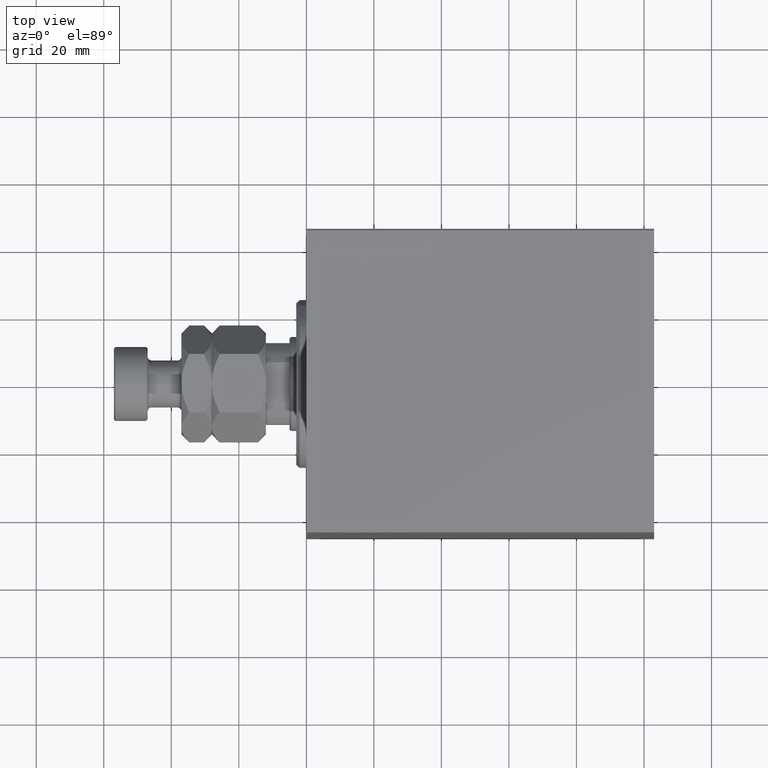
[diagram: clean part render]
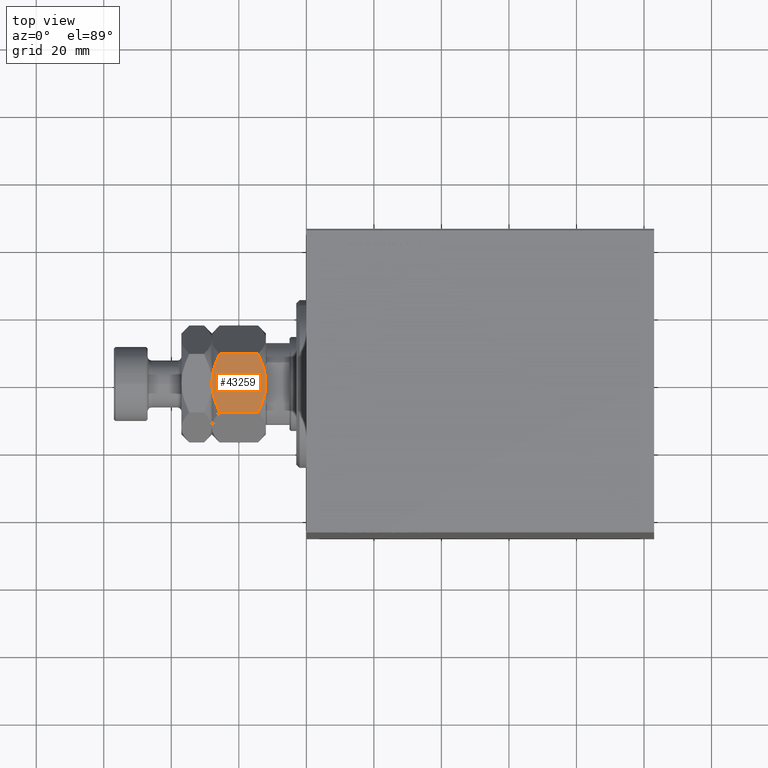
[diagram: same view with one face highlighted and labeled with its STEP entity id]
A machine part, top view. The second image highlights one B-rep face of the part: STEP entity #43259.
In plain terms, the highlighted planar face has unit normal (0, 0, -1).
Its self-contained STEP definition (entity closure, byte-faithful):
#177 = CARTESIAN_POINT ( 'NONE',  ( 15.00000000000000178, 0.3816858437404682114, 16.00000000000001066 ) ) ;
#194 = CARTESIAN_POINT ( 'NONE',  ( 14.99999999999999822, -3.735400403320778384, 0.4426250994506710779 ) ) ;
#358 = LINE ( 'NONE', #21030, #15902 ) ;
#1813 = ORIENTED_EDGE ( 'NONE', *, *, #32866, .F. ) ;
#2253 = AXIS2_PLACEMENT_3D ( 'NONE', #28158, #42209, #38765 ) ;
#2406 = EDGE_CURVE ( 'NONE', #21092, #45363, #358, .T. ) ;
#2760 = ORIENTED_EDGE ( 'NONE', *, *, #14692, .F. ) ;
#3189 = CARTESIAN_POINT ( 'NONE',  ( 15.00000000000000000, -0.7629267201675461463, 0.01468466084192619932 ) ) ;
#3851 = CARTESIAN_POINT ( 'NONE',  ( 15.00000000000000000, 5.178726290334375371, 15.14627300035555990 ) ) ;
#5572 = CARTESIAN_POINT ( 'NONE',  ( 15.00000000000000000, -8.660254037844389075, 13.67949192431123961 ) ) ;
#5811 = CARTESIAN_POINT ( 'NONE',  ( 15.00000000000000178, -7.987590979791838741, 14.01582345333751967 ) ) ;
#6657 = CARTESIAN_POINT ( 'NONE',  ( 15.00000000000000000, 0.000000000000000000, 0.000000000000000000 ) ) ;
#7492 = B_SPLINE_CURVE_WITH_KNOTS ( 'NONE', 3,
 ( #6657, #35594, #3189, #31458, #31230, #21322, #194, #45275, #13769, #42057, #24340, #27776 ),
 .UNSPECIFIED., .F., .F.,
 ( 4, 2, 2, 2, 2, 4 ),
 ( 0.03291042869972461704, 0.03403908204310902852, 0.03516773538649344694, 0.03742504207326226989, 0.03968234876003109979, 0.04193965544679992274 ),
 .UNSPECIFIED. ) ;
#8382 = DIRECTION ( 'NONE',  ( -0.000000000000000000, -0.000000000000000000, -1.000000000000000000 ) ) ;
#8988 = CARTESIAN_POINT ( 'NONE',  ( 15.00000000000000178, 1.527574731641579753, -2.310705880109730931E-15 ) ) ;
#9202 = CARTESIAN_POINT ( 'NONE',  ( 15.00000000000000000, 7.987590979791842294, 1.984176546662486773 ) ) ;
#9512 = CARTESIAN_POINT ( 'NONE',  ( 15.00000000000000000, -8.660254037844389075, 13.67949192431123961 ) ) ;
#9856 = CARTESIAN_POINT ( 'NONE',  ( 15.00000000000000533, 7.987879721624093321, 14.01567908242138927 ) ) ;
#10698 = FACE_OUTER_BOUND ( 'NONE', #22777, .T. ) ;
#10707 = DIRECTION ( 'NONE',  ( -0.000000000000000000, -0.000000000000000000, -1.000000000000000000 ) ) ;
#11979 = CARTESIAN_POINT ( 'NONE',  ( 15.00000000000000000, 0.000000000000000000, 0.000000000000000000 ) ) ;
#13769 = CARTESIAN_POINT ( 'NONE',  ( 15.00000000000000000, -5.890999289811427175, 1.102415080315421125 ) ) ;
#14202 = CARTESIAN_POINT ( 'NONE',  ( 15.00000000000000000, 1.890862710942010638, 15.88574619416683831 ) ) ;
#14484 = B_SPLINE_CURVE_WITH_KNOTS ( 'NONE', 3,
 ( #24321, #177, #27988, #24094, #14202, #38136, #38581, #3851, #38363, #42253, #9856, #24766 ),
 .UNSPECIFIED., .F., .F.,
 ( 4, 2, 2, 2, 2, 4 ),
 ( 0.03291042869972460316, 0.03403908204310901464, 0.03516773538649342612, 0.03742504207326225601, 0.03968234876003107897, 0.04193965544679990887 ),
 .UNSPECIFIED. ) ;
#14692 = EDGE_CURVE ( 'NONE', #36885, #45363, #7492, .T. ) ;
#15902 = VECTOR ( 'NONE', #10707, 1000.000000000000000 ) ;
#16373 = VERTEX_POINT ( 'NONE', #39073 ) ;
#16585 = ORIENTED_EDGE ( 'NONE', *, *, #36089, .F. ) ;
#19313 = CARTESIAN_POINT ( 'NONE',  ( 14.99999999999999822, 5.891877557735396564, 1.102734500939527296 ) ) ;
#19805 = CARTESIAN_POINT ( 'NONE',  ( 15.00000000000000533, -3.008020699068709725, 15.76423971609371222 ) ) ;
#21030 = CARTESIAN_POINT ( 'NONE',  ( 15.00000000000000000, -8.660254037844389075, 16.00000000000000000 ) ) ;
#21092 = VERTEX_POINT ( 'NONE', #9512 ) ;
#21322 = CARTESIAN_POINT ( 'NONE',  ( 15.00000000000000178, -3.004330627448764002, 0.2802888644511988825 ) ) ;
#21580 = VERTEX_POINT ( 'NONE', #24084 ) ;
#22648 = ORIENTED_EDGE ( 'NONE', *, *, #34865, .F. ) ;
#22777 = EDGE_LOOP ( 'NONE', ( #22648, #16585, #1813, #40566, #24672, #2760 ) ) ;
#23104 = B_SPLINE_CURVE_WITH_KNOTS ( 'NONE', 3,
 ( #40023, #9202, #36578, #19313, #33796, #33340, #8988, #11979 ),
 .UNSPECIFIED., .F., .F.,
 ( 4, 2, 2, 4 ),
 ( 0.02387628527307377596, 0.02613482112973648797, 0.02839335698639919650, 0.03291042869972461704 ),
 .UNSPECIFIED. ) ;
#24084 = CARTESIAN_POINT ( 'NONE',  ( 14.99999999999999645, 0.000000000000000000, 16.00000000000000000 ) ) ;
#24094 = CARTESIAN_POINT ( 'NONE',  ( 15.00000000000000000, 1.516896874073655477, 15.92818277676011007 ) ) ;
#24321 = CARTESIAN_POINT ( 'NONE',  ( 14.99999999999999645, 0.000000000000000000, 16.00000000000000000 ) ) ;
#24340 = CARTESIAN_POINT ( 'NONE',  ( 15.00000000000000178, -7.987879721624093321, 1.984320917578617616 ) ) ;
#24672 = ORIENTED_EDGE ( 'NONE', *, *, #2406, .T. ) ;
#24766 = CARTESIAN_POINT ( 'NONE',  ( 15.00000000000000000, 8.660254037844389075, 13.67949192431123784 ) ) ;
#26264 = CARTESIAN_POINT ( 'NONE',  ( 14.99999999999999645, 0.000000000000000000, 16.00000000000000000 ) ) ;
#27776 = CARTESIAN_POINT ( 'NONE',  ( 15.00000000000000000, -8.660254037844389075, 2.320508075688767047 ) ) ;
#27988 = CARTESIAN_POINT ( 'NONE',  ( 15.00000000000000355, 0.7629267201675408172, 15.98531533915807934 ) ) ;
#28158 = CARTESIAN_POINT ( 'NONE',  ( 15.00000000000000000, -8.660254037844389075, 16.00000000000000000 ) ) ;
#28264 = EDGE_CURVE ( 'NONE', #21092, #21580, #38943, .T. ) ;
#29706 = CARTESIAN_POINT ( 'NONE',  ( 15.00000000000000178, -5.891877557735398341, 14.89726549906047737 ) ) ;
#29739 = LINE ( 'NONE', #43789, #41094 ) ;
#30390 = CARTESIAN_POINT ( 'NONE',  ( 15.00000000000000000, -7.301344312447432650, 14.32986304731390881 ) ) ;
#31230 = CARTESIAN_POINT ( 'NONE',  ( 15.00000000000000178, -1.890862710942016411, 0.1142538058331598050 ) ) ;
#31458 = CARTESIAN_POINT ( 'NONE',  ( 15.00000000000000178, -1.516896874073660584, 0.07181722323989220280 ) ) ;
#31553 = CARTESIAN_POINT ( 'NONE',  ( 15.00000000000000000, 0.000000000000000000, 0.000000000000000000 ) ) ;
#32866 = EDGE_CURVE ( 'NONE', #21580, #16373, #14484, .T. ) ;
#33340 = CARTESIAN_POINT ( 'NONE',  ( 15.00000000000000000, 3.008020699068711501, 0.2357602839062953870 ) ) ;
#33618 = CARTESIAN_POINT ( 'NONE',  ( 15.00000000000000533, -1.527574731641585526, 16.00000000000001066 ) ) ;
#33796 = CARTESIAN_POINT ( 'NONE',  ( 15.00000000000000000, 5.176035048062463950, 0.8528038385778482500 ) ) ;
#34682 = CARTESIAN_POINT ( 'NONE',  ( 15.00000000000000000, 8.660254037844389075, 2.320508075688765715 ) ) ;
#34865 = EDGE_CURVE ( 'NONE', #41902, #36885, #23104, .T. ) ;
#35594 = CARTESIAN_POINT ( 'NONE',  ( 15.00000000000000178, -0.3816858437404750393, -1.673737103774498062E-15 ) ) ;
#36089 = EDGE_CURVE ( 'NONE', #16373, #41902, #29739, .T. ) ;
#36578 = CARTESIAN_POINT ( 'NONE',  ( 15.00000000000000178, 7.301344312447433538, 1.670136952686098741 ) ) ;
#36885 = VERTEX_POINT ( 'NONE', #31553 ) ;
#38136 = CARTESIAN_POINT ( 'NONE',  ( 15.00000000000000000, 3.004330627448758673, 15.71971113554880972 ) ) ;
#38363 = CARTESIAN_POINT ( 'NONE',  ( 15.00000000000000178, 5.890999289811421846, 14.89758491968458465 ) ) ;
#38581 = CARTESIAN_POINT ( 'NONE',  ( 15.00000000000000000, 3.735400403320773055, 15.55737490054933403 ) ) ;
#38765 = DIRECTION ( 'NONE',  ( 0.000000000000000000, 0.000000000000000000, 1.000000000000000000 ) ) ;
#38943 = B_SPLINE_CURVE_WITH_KNOTS ( 'NONE', 3,
 ( #5572, #5811, #30390, #29706, #43754, #19805, #33618, #26264 ),
 .UNSPECIFIED., .F., .F.,
 ( 4, 2, 2, 4 ),
 ( 0.02387628527307377943, 0.02613482112973648450, 0.02839335698639919303, 0.03291042869972460316 ),
 .UNSPECIFIED. ) ;
#39073 = CARTESIAN_POINT ( 'NONE',  ( 15.00000000000000000, 8.660254037844389075, 13.67949192431123784 ) ) ;
#40023 = CARTESIAN_POINT ( 'NONE',  ( 15.00000000000000000, 8.660254037844389075, 2.320508075688765715 ) ) ;
#40566 = ORIENTED_EDGE ( 'NONE', *, *, #28264, .F. ) ;
#41094 = VECTOR ( 'NONE', #8382, 1000.000000000000000 ) ;
#41902 = VERTEX_POINT ( 'NONE', #34682 ) ;
#42057 = CARTESIAN_POINT ( 'NONE',  ( 15.00000000000000533, -7.300329060372333423, 1.669694153640836065 ) ) ;
#42209 = DIRECTION ( 'NONE',  ( -1.000000000000000000, 0.000000000000000000, 0.000000000000000000 ) ) ;
#42253 = CARTESIAN_POINT ( 'NONE',  ( 14.99999999999999645, 7.300329060372325429, 14.33030584635916860 ) ) ;
#43259 = ADVANCED_FACE ( 'NONE', ( #10698 ), #45442, .F. ) ;
#43754 = CARTESIAN_POINT ( 'NONE',  ( 15.00000000000000355, -5.176035048062459509, 15.14719616142216196 ) ) ;
#43789 = CARTESIAN_POINT ( 'NONE',  ( 15.00000000000000000, 8.660254037844389075, 16.00000000000000000 ) ) ;
#45225 = CARTESIAN_POINT ( 'NONE',  ( 15.00000000000000000, -8.660254037844389075, 2.320508075688767047 ) ) ;
#45275 = CARTESIAN_POINT ( 'NONE',  ( 14.99999999999999822, -5.178726290334377147, 0.8537269996444445397 ) ) ;
#45363 = VERTEX_POINT ( 'NONE', #45225 ) ;
#45442 = PLANE ( 'NONE',  #2253 ) ;